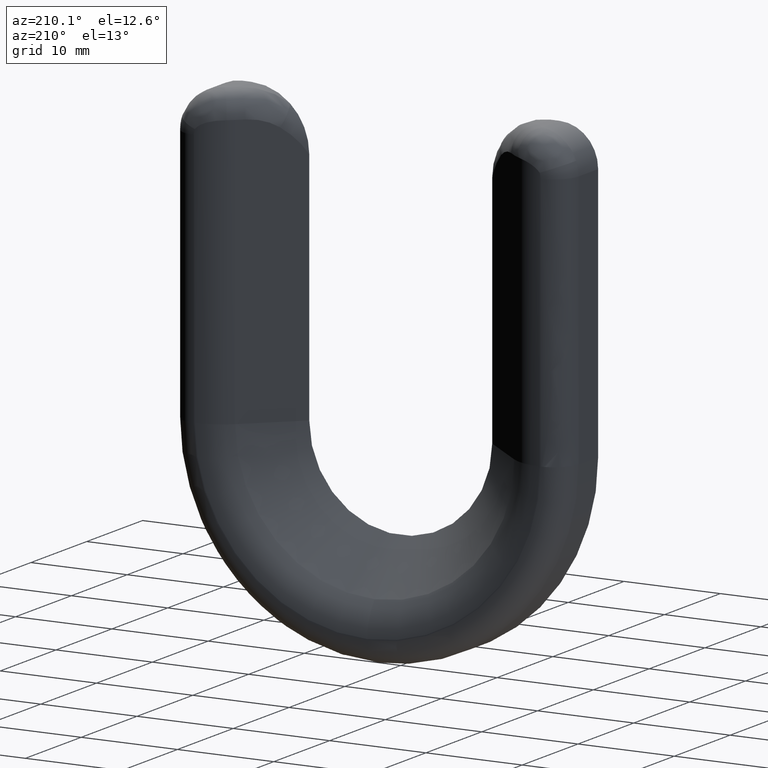
[diagram: clean part render]
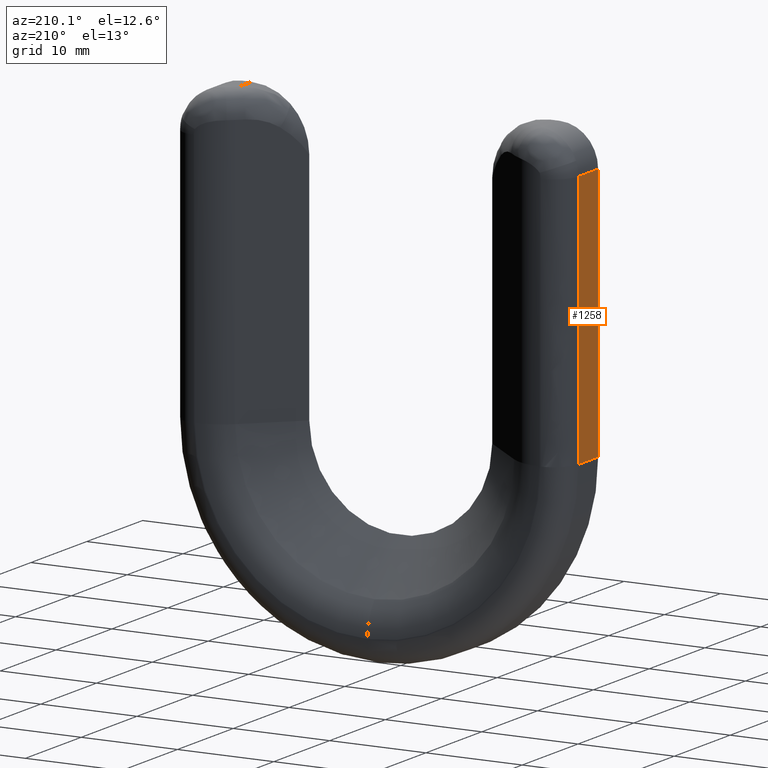
[diagram: same view with one face highlighted and labeled with its STEP entity id]
A machine part, auxiliary view. The second image highlights one B-rep face of the part: STEP entity #1258.
In plain terms, the highlighted planar face has unit normal (1, 0, -0).
Its self-contained STEP definition (entity closure, byte-faithful):
#27 = CARTESIAN_POINT ( 'NONE',  ( -20.49999999999999600, 3.500000000000001300, 9.500000000000010700 ) ) ;
#64 = CARTESIAN_POINT ( 'NONE',  ( -20.49999999999999600, 0.0000000000000000000, 9.500000000000010700 ) ) ;
#65 = LINE ( 'NONE', #137, #360 ) ;
#137 = CARTESIAN_POINT ( 'NONE',  ( -20.49999999999999600, 0.0000000000000000000, 9.500000000000010700 ) ) ;
#155 = EDGE_LOOP ( 'NONE', ( #349, #695, #572, #1222 ) ) ;
#156 = VERTEX_POINT ( 'NONE', #856 ) ;
#159 = VERTEX_POINT ( 'NONE', #64 ) ;
#223 = VERTEX_POINT ( 'NONE', #945 ) ;
#230 = CARTESIAN_POINT ( 'NONE',  ( -20.49999999999999300, 3.500000000000001300, 27.16666666666666100 ) ) ;
#329 = DIRECTION ( 'NONE',  ( -0.0000000000000000000, 1.000000000000000000, -0.0000000000000000000 ) ) ;
#330 = PLANE ( 'NONE',  #560 ) ;
#349 = ORIENTED_EDGE ( 'NONE', *, *, #424, .T. ) ;
#360 = VECTOR ( 'NONE', #807, 1000.000000000000000 ) ;
#397 = LINE ( 'NONE', #1116, #913 ) ;
#424 = EDGE_CURVE ( 'NONE', #223, #156, #536, .T. ) ;
#519 = CARTESIAN_POINT ( 'NONE',  ( -20.49999999999999600, 6.000000000000000000, 9.500000000000010700 ) ) ;
#527 = DIRECTION ( 'NONE',  ( 1.000000000000000000, 0.0000000000000000000, -2.275047181608928600E-016 ) ) ;
#530 = DIRECTION ( 'NONE',  ( -0.0000000000000000000, -1.000000000000000000, -0.0000000000000000000 ) ) ;
#536 = LINE ( 'NONE', #914, #748 ) ;
#560 = AXIS2_PLACEMENT_3D ( 'NONE', #519, #527, #1206 ) ;
#572 = ORIENTED_EDGE ( 'NONE', *, *, #676, .T. ) ;
#593 = FACE_OUTER_BOUND ( 'NONE', #155, .T. ) ;
#615 = EDGE_CURVE ( 'NONE', #156, #1232, #993, .T. ) ;
#676 = EDGE_CURVE ( 'NONE', #1232, #159, #397, .T. ) ;
#695 = ORIENTED_EDGE ( 'NONE', *, *, #615, .T. ) ;
#748 = VECTOR ( 'NONE', #329, 1000.000000000000000 ) ;
#807 = DIRECTION ( 'NONE',  ( 2.275047181608928600E-016, 0.0000000000000000000, 1.000000000000000000 ) ) ;
#856 = CARTESIAN_POINT ( 'NONE',  ( -20.49999999999998900, 3.500000000000001300, 35.99999999999999300 ) ) ;
#913 = VECTOR ( 'NONE', #530, 1000.000000000000000 ) ;
#914 = CARTESIAN_POINT ( 'NONE',  ( -20.49999999999998900, 6.000000000000000000, 35.99999999999999300 ) ) ;
#945 = CARTESIAN_POINT ( 'NONE',  ( -20.49999999999998900, 0.0000000000000000000, 35.99999999999999300 ) ) ;
#993 = B_SPLINE_CURVE_WITH_KNOTS ( 'NONE', 3,
 ( #1095, #230, #1163, #1067 ),
 .UNSPECIFIED., .F., .F.,
 ( 4, 4 ),
 ( 0.0000000000000000000, 0.02649999999999997800 ),
 .UNSPECIFIED. ) ;
#1067 = CARTESIAN_POINT ( 'NONE',  ( -20.49999999999999600, 3.500000000000001300, 9.500000000000010700 ) ) ;
#1095 = CARTESIAN_POINT ( 'NONE',  ( -20.49999999999998900, 3.500000000000001300, 35.99999999999999300 ) ) ;
#1116 = CARTESIAN_POINT ( 'NONE',  ( -20.49999999999999600, 6.000000000000000000, 9.500000000000010700 ) ) ;
#1163 = CARTESIAN_POINT ( 'NONE',  ( -20.49999999999999300, 3.500000000000001300, 18.33333333333333600 ) ) ;
#1206 = DIRECTION ( 'NONE',  ( -2.275047181608928600E-016, 0.0000000000000000000, -1.000000000000000000 ) ) ;
#1222 = ORIENTED_EDGE ( 'NONE', *, *, #1260, .T. ) ;
#1232 = VERTEX_POINT ( 'NONE', #27 ) ;
#1258 = ADVANCED_FACE ( 'NONE', ( #593 ), #330, .F. ) ;
#1260 = EDGE_CURVE ( 'NONE', #159, #223, #65, .T. ) ;